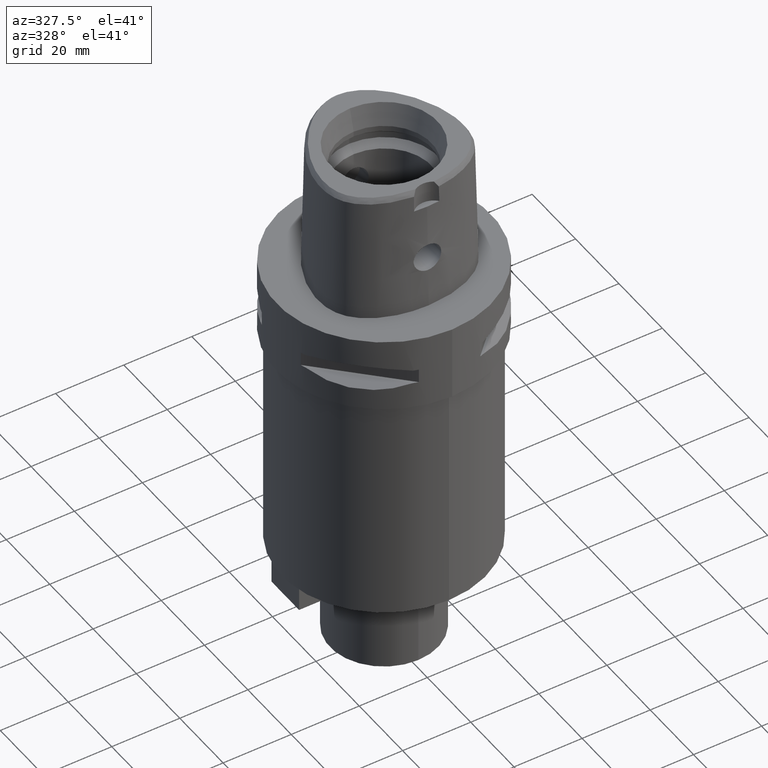
[diagram: clean part render]
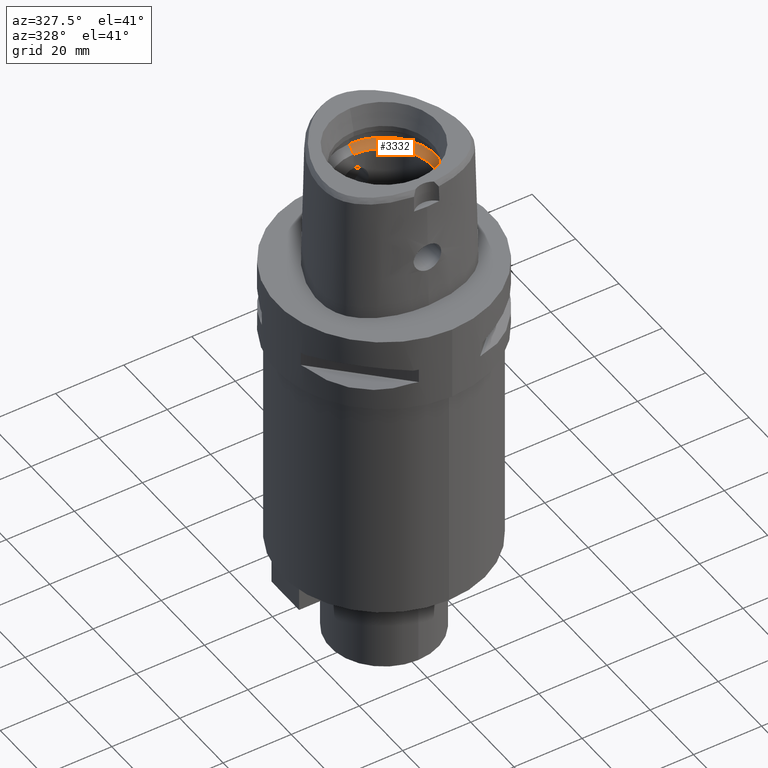
[diagram: same view with one face highlighted and labeled with its STEP entity id]
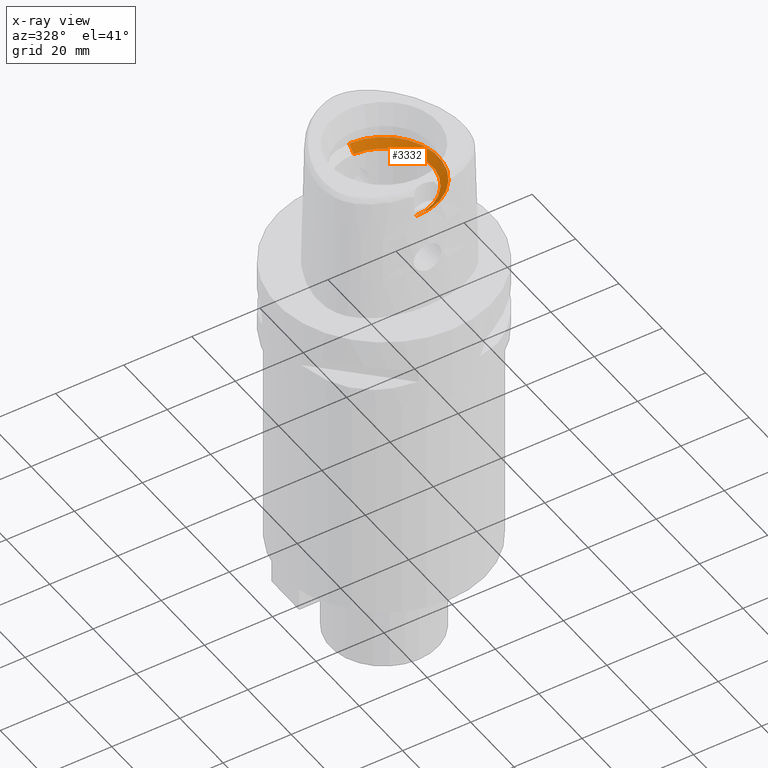
[diagram: x-ray of the same camera — body ghosted, the highlighted face saturated]
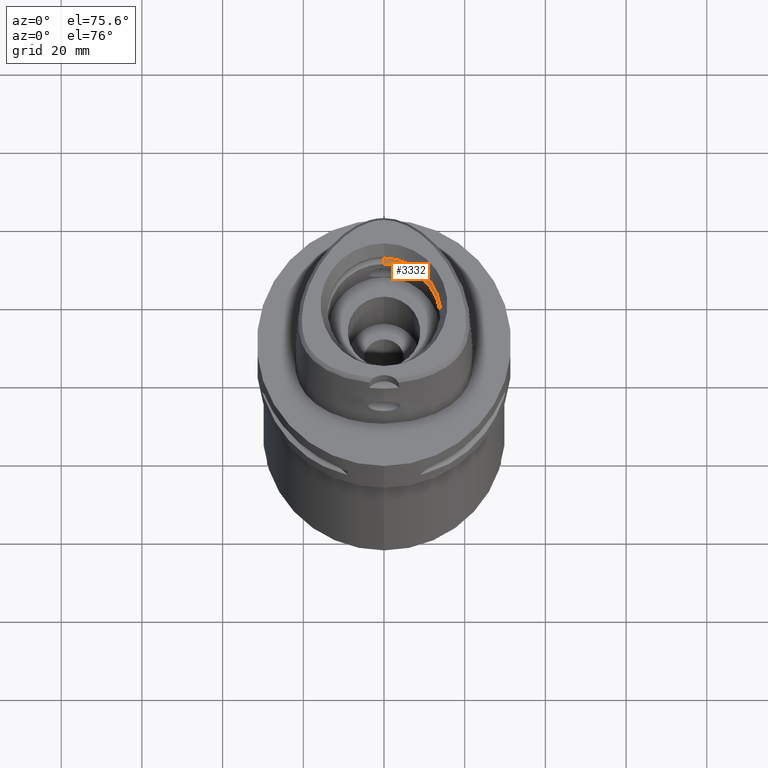
[diagram: same view with one face highlighted and labeled with its STEP entity id]
A machine part, auxiliary view. The second image highlights one B-rep face of the part: STEP entity #3332.
The next image is the same camera in x-ray: the body ghosted, the highlighted face saturated — about 0% of this face is hidden behind the body in this view.
A second angle (auxiliary view) of the same face is appended — the face is thin or edge-on in the first view.
In plain terms, the highlighted conical surface has half-angle 45 deg.
Its self-contained STEP definition (entity closure, byte-faithful):
#1158=DIRECTION('',(0.E0,-7.071067811865E-1,7.071067811865E-1));
#1159=VECTOR('',#1158,2.828427124746E0);
#1160=CARTESIAN_POINT('',(0.E0,-1.4E1,2.42E1));
#1161=LINE('',#1160,#1159);
#1181=CARTESIAN_POINT('',(0.E0,0.E0,2.42E1));
#1182=DIRECTION('',(0.E0,0.E0,1.E0));
#1183=DIRECTION('',(0.E0,-1.E0,0.E0));
#1184=AXIS2_PLACEMENT_3D('',#1181,#1182,#1183);
#1189=DIRECTION('',(0.E0,7.071067811865E-1,7.071067811865E-1));
#1190=VECTOR('',#1189,2.828427124746E0);
#1191=CARTESIAN_POINT('',(0.E0,1.4E1,2.42E1));
#1192=LINE('',#1191,#1190);
#1196=CARTESIAN_POINT('',(0.E0,0.E0,2.62E1));
#1197=DIRECTION('',(0.E0,0.E0,-1.E0));
#1198=DIRECTION('',(0.E0,1.E0,0.E0));
#1199=AXIS2_PLACEMENT_3D('',#1196,#1197,#1198);
#1874=CARTESIAN_POINT('',(0.E0,1.4E1,2.42E1));
#1875=VERTEX_POINT('',#1874);
#1876=CARTESIAN_POINT('',(0.E0,-1.4E1,2.42E1));
#1877=VERTEX_POINT('',#1876);
#1885=CARTESIAN_POINT('',(0.E0,-1.6E1,2.62E1));
#1886=VERTEX_POINT('',#1885);
#1887=CARTESIAN_POINT('',(0.E0,1.6E1,2.62E1));
#1888=VERTEX_POINT('',#1887);
#3320=CARTESIAN_POINT('',(0.E0,0.E0,2.52E1));
#3321=DIRECTION('',(0.E0,0.E0,1.E0));
#3322=DIRECTION('',(0.E0,1.E0,0.E0));
#3323=AXIS2_PLACEMENT_3D('',#3320,#3321,#3322);
#3324=CONICAL_SURFACE('',#3323,1.5E1,4.5E1);
#3325=ORIENTED_EDGE('',*,*,#3310,.F.);
#3326=ORIENTED_EDGE('',*,*,#3092,.T.);
#3327=ORIENTED_EDGE('',*,*,#3314,.T.);
#3329=ORIENTED_EDGE('',*,*,#3328,.T.);
#3330=EDGE_LOOP('',(#3325,#3326,#3327,#3329));
#3331=FACE_OUTER_BOUND('',#3330,.F.);
#1185=CIRCLE('',#1184,1.4E1);
#1200=CIRCLE('',#1199,1.6E1);
#3092=EDGE_CURVE('',#1877,#1875,#1185,.T.);
#3310=EDGE_CURVE('',#1877,#1886,#1161,.T.);
#3314=EDGE_CURVE('',#1875,#1888,#1192,.T.);
#3328=EDGE_CURVE('',#1888,#1886,#1200,.T.);
#3332=ADVANCED_FACE('',(#3331),#3324,.F.);